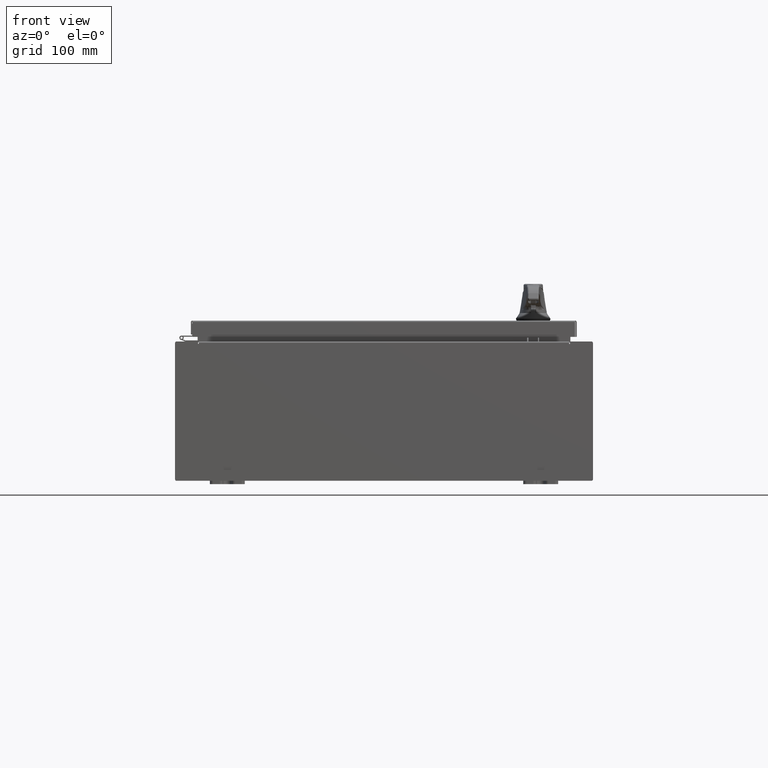
[diagram: clean part render]
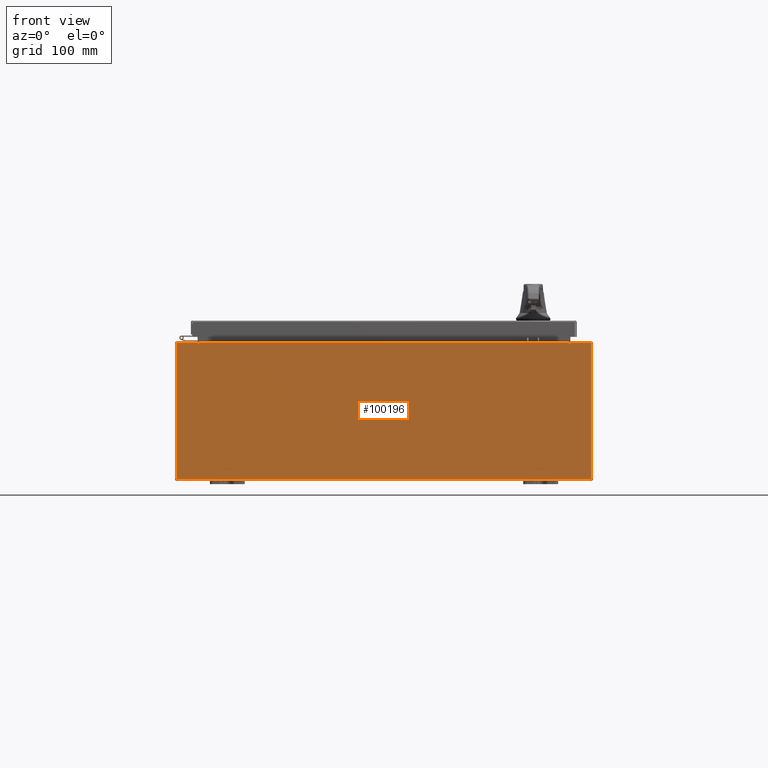
[diagram: same view with one face highlighted and labeled with its STEP entity id]
A machine part, front view. The second image highlights one B-rep face of the part: STEP entity #100196.
In plain terms, the highlighted planar face has unit normal (-0, 1, -0).
Its self-contained STEP definition (entity closure, byte-faithful):
#2718 = DIRECTION ( 'NONE',  ( 0.0000000000000000000, -1.000000000000000000, 0.0000000000000000000 ) ) ;
#5093 = CARTESIAN_POINT ( 'NONE',  ( 11.92530000000000000, 0.0000000000000000000, -3.925299999999999600 ) ) ;
#5132 = EDGE_CURVE ( 'NONE', #110593, #38600, #36106, .T. ) ;
#6227 = LINE ( 'NONE', #83228, #51933 ) ;
#7024 = VECTOR ( 'NONE', #81465, 39.37007874015748100 ) ;
#7843 = DIRECTION ( 'NONE',  ( -1.000000000000000000, -0.0000000000000000000, -0.0000000000000000000 ) ) ;
#10532 = CARTESIAN_POINT ( 'NONE',  ( 10.63720000000000400, 0.0000000000000000000, 3.912299999999999700 ) ) ;
#11691 = CARTESIAN_POINT ( 'NONE',  ( 10.67454999999983300, -0.0000000000000000000, -4.633366117301815000E-013 ) ) ;
#11933 = ORIENTED_EDGE ( 'NONE', *, *, #23150, .F. ) ;
#12108 = CARTESIAN_POINT ( 'NONE',  ( -11.92530000000000000, 0.0000000000000000000, 3.925299999999999600 ) ) ;
#14677 = AXIS2_PLACEMENT_3D ( 'NONE', #38360, #102399, #47520 ) ;
#14708 = FACE_OUTER_BOUND ( 'NONE', #49924, .T. ) ;
#14823 = DIRECTION ( 'NONE',  ( 1.000000000000000000, 0.0000000000000000000, 0.0000000000000000000 ) ) ;
#16863 = CARTESIAN_POINT ( 'NONE',  ( -11.92530000000000000, 0.0000000000000000000, 3.925299999999999600 ) ) ;
#17951 = VECTOR ( 'NONE', #7843, 39.37007874015748100 ) ;
#18602 = VECTOR ( 'NONE', #84856, 39.37007874015748100 ) ;
#19619 = LINE ( 'NONE', #105986, #89659 ) ;
#21443 = DIRECTION ( 'NONE',  ( 0.0000000000000000000, 0.0000000000000000000, 1.000000000000000000 ) ) ;
#23150 = EDGE_CURVE ( 'NONE', #53120, #97006, #73141, .T. ) ;
#23295 = CARTESIAN_POINT ( 'NONE',  ( 10.65587500000000200, 0.0000000000000000000, 3.874949999999999700 ) ) ;
#29573 = EDGE_CURVE ( 'NONE', #80514, #50851, #42810, .T. ) ;
#29931 = PLANE ( 'NONE',  #100681 ) ;
#32413 = DIRECTION ( 'NONE',  ( 0.0000000000000000000, 0.0000000000000000000, -1.000000000000000000 ) ) ;
#34680 = VERTEX_POINT ( 'NONE', #106121 ) ;
#35484 = CARTESIAN_POINT ( 'NONE',  ( -11.92530000000000000, 0.0000000000000000000, 3.925299999999999600 ) ) ;
#36106 = LINE ( 'NONE', #57425, #109139 ) ;
#38360 = CARTESIAN_POINT ( 'NONE',  ( -10.65587500000000200, 0.0000000000000000000, 3.874949999999999700 ) ) ;
#38600 = VERTEX_POINT ( 'NONE', #50614 ) ;
#39499 = EDGE_CURVE ( 'NONE', #73610, #115460, #6227, .T. ) ;
#40194 = VECTOR ( 'NONE', #21443, 39.37007874015748100 ) ;
#42810 = LINE ( 'NONE', #11691, #18602 ) ;
#43387 = CARTESIAN_POINT ( 'NONE',  ( -10.63720000000000400, -0.0000000000000000000, 3.874949999999999700 ) ) ;
#44119 = CARTESIAN_POINT ( 'NONE',  ( -11.92530000000000000, 0.0000000000000000000, -3.925299999999999600 ) ) ;
#44715 = LINE ( 'NONE', #63107, #90564 ) ;
#45053 = VERTEX_POINT ( 'NONE', #43387 ) ;
#47520 = DIRECTION ( 'NONE',  ( 0.0000000000000000000, 0.0000000000000000000, -1.000000000000000000 ) ) ;
#48249 = ORIENTED_EDGE ( 'NONE', *, *, #94239, .T. ) ;
#48863 = CARTESIAN_POINT ( 'NONE',  ( 10.67455000000000200, 0.0000000000000000000, 3.874949999999999700 ) ) ;
#48985 = CARTESIAN_POINT ( 'NONE',  ( -10.67455000000000200, 0.0000000000000000000, 3.874949999999999700 ) ) ;
#49924 = EDGE_LOOP ( 'NONE', ( #50765, #63780, #89321, #48249, #11933, #53665, #103473, #59793, #62069, #67737, #56880, #117998 ) ) ;
#50614 = CARTESIAN_POINT ( 'NONE',  ( -10.67455000000000200, 0.0000000000000000000, 3.925299999999999600 ) ) ;
#50765 = ORIENTED_EDGE ( 'NONE', *, *, #69694, .F. ) ;
#50851 = VERTEX_POINT ( 'NONE', #48863 ) ;
#51933 = VECTOR ( 'NONE', #92407, 39.37007874015748100 ) ;
#52836 = EDGE_CURVE ( 'NONE', #45053, #94503, #54426, .T. ) ;
#53120 = VERTEX_POINT ( 'NONE', #98383 ) ;
#53665 = ORIENTED_EDGE ( 'NONE', *, *, #91154, .F. ) ;
#54426 = CIRCLE ( 'NONE', #14677, 0.01867499999999949400 ) ;
#55646 = LINE ( 'NONE', #35484, #7024 ) ;
#56880 = ORIENTED_EDGE ( 'NONE', *, *, #76037, .T. ) ;
#57425 = CARTESIAN_POINT ( 'NONE',  ( -11.92530000000000000, 0.0000000000000000000, 3.925299999999999600 ) ) ;
#57442 = CARTESIAN_POINT ( 'NONE',  ( 0.0000000000000000000, 0.0000000000000000000, 0.0000000000000000000 ) ) ;
#57615 = LINE ( 'NONE', #12108, #79141 ) ;
#59793 = ORIENTED_EDGE ( 'NONE', *, *, #99596, .T. ) ;
#60084 = EDGE_CURVE ( 'NONE', #115460, #71373, #115242, .T. ) ;
#62069 = ORIENTED_EDGE ( 'NONE', *, *, #39499, .T. ) ;
#62542 = CARTESIAN_POINT ( 'NONE',  ( -11.92530000000000000, 0.0000000000000000000, -3.925299999999999600 ) ) ;
#63107 = CARTESIAN_POINT ( 'NONE',  ( -10.63720000000000400, -0.0000000000000000000, 0.0000000000000000000 ) ) ;
#63780 = ORIENTED_EDGE ( 'NONE', *, *, #52836, .F. ) ;
#65645 = CARTESIAN_POINT ( 'NONE',  ( -10.67455000000000200, -0.0000000000000000000, 0.0000000000000000000 ) ) ;
#66612 = DIRECTION ( 'NONE',  ( 0.0000000000000000000, -0.0000000000000000000, -1.000000000000000000 ) ) ;
#67737 = ORIENTED_EDGE ( 'NONE', *, *, #60084, .T. ) ;
#69694 = EDGE_CURVE ( 'NONE', #94503, #38600, #98018, .T. ) ;
#71373 = VERTEX_POINT ( 'NONE', #44119 ) ;
#71702 = CARTESIAN_POINT ( 'NONE',  ( 10.67455000000000200, 0.0000000000000000000, 3.925299999999999600 ) ) ;
#71935 = EDGE_CURVE ( 'NONE', #34680, #45053, #44715, .T. ) ;
#73141 = LINE ( 'NONE', #85758, #40194 ) ;
#73610 = VERTEX_POINT ( 'NONE', #101586 ) ;
#76037 = EDGE_CURVE ( 'NONE', #71373, #110593, #55646, .T. ) ;
#79141 = VECTOR ( 'NONE', #85272, 39.37007874015748100 ) ;
#80514 = VERTEX_POINT ( 'NONE', #71702 ) ;
#81465 = DIRECTION ( 'NONE',  ( -0.0000000000000000000, -0.0000000000000000000, 1.000000000000000000 ) ) ;
#81595 = DIRECTION ( 'NONE',  ( 0.0000000000000000000, 0.0000000000000000000, -1.000000000000000000 ) ) ;
#83228 = CARTESIAN_POINT ( 'NONE',  ( 11.92530000000000000, 0.0000000000000000000, 3.925299999999999600 ) ) ;
#84856 = DIRECTION ( 'NONE',  ( -4.340572780400004900E-014, 0.0000000000000000000, -1.000000000000000000 ) ) ;
#85272 = DIRECTION ( 'NONE',  ( 1.000000000000000000, 0.0000000000000000000, 0.0000000000000000000 ) ) ;
#85758 = CARTESIAN_POINT ( 'NONE',  ( 10.63720000000000400, 0.0000000000000000000, 0.0000000000000000000 ) ) ;
#87204 = DIRECTION ( 'NONE',  ( -0.0000000000000000000, 1.000000000000000000, -0.0000000000000000000 ) ) ;
#89321 = ORIENTED_EDGE ( 'NONE', *, *, #71935, .F. ) ;
#89659 = VECTOR ( 'NONE', #14823, 39.37007874015748100 ) ;
#90564 = VECTOR ( 'NONE', #81595, 39.37007874015748100 ) ;
#91154 = EDGE_CURVE ( 'NONE', #50851, #53120, #106440, .T. ) ;
#92407 = DIRECTION ( 'NONE',  ( 0.0000000000000000000, 0.0000000000000000000, -1.000000000000000000 ) ) ;
#94239 = EDGE_CURVE ( 'NONE', #34680, #97006, #19619, .T. ) ;
#94261 = DIRECTION ( 'NONE',  ( 1.000000000000000000, 0.0000000000000000000, 0.0000000000000000000 ) ) ;
#94503 = VERTEX_POINT ( 'NONE', #48985 ) ;
#95143 = VECTOR ( 'NONE', #102123, 39.37007874015748100 ) ;
#97006 = VERTEX_POINT ( 'NONE', #10532 ) ;
#98018 = LINE ( 'NONE', #65645, #95143 ) ;
#98383 = CARTESIAN_POINT ( 'NONE',  ( 10.63720000000000400, 0.0000000000000000000, 3.874949999999999700 ) ) ;
#99596 = EDGE_CURVE ( 'NONE', #80514, #73610, #57615, .T. ) ;
#100196 = ADVANCED_FACE ( 'NONE', ( #14708 ), #29931, .F. ) ;
#100681 = AXIS2_PLACEMENT_3D ( 'NONE', #57442, #2718, #66612 ) ;
#101586 = CARTESIAN_POINT ( 'NONE',  ( 11.92530000000000000, 0.0000000000000000000, 3.925299999999999600 ) ) ;
#102123 = DIRECTION ( 'NONE',  ( 0.0000000000000000000, 0.0000000000000000000, 1.000000000000000000 ) ) ;
#102399 = DIRECTION ( 'NONE',  ( -0.0000000000000000000, 1.000000000000000000, -0.0000000000000000000 ) ) ;
#103473 = ORIENTED_EDGE ( 'NONE', *, *, #29573, .F. ) ;
#105986 = CARTESIAN_POINT ( 'NONE',  ( -10.63720000000000400, 1.024442997624098700E-016, 3.912299999999999700 ) ) ;
#106121 = CARTESIAN_POINT ( 'NONE',  ( -10.63720000000000400, 1.024442997624098700E-016, 3.912299999999999700 ) ) ;
#106440 = CIRCLE ( 'NONE', #110156, 0.01867499999999949400 ) ;
#109139 = VECTOR ( 'NONE', #94261, 39.37007874015748100 ) ;
#110156 = AXIS2_PLACEMENT_3D ( 'NONE', #23295, #87204, #32413 ) ;
#110593 = VERTEX_POINT ( 'NONE', #16863 ) ;
#115242 = LINE ( 'NONE', #62542, #17951 ) ;
#115460 = VERTEX_POINT ( 'NONE', #5093 ) ;
#117998 = ORIENTED_EDGE ( 'NONE', *, *, #5132, .T. ) ;